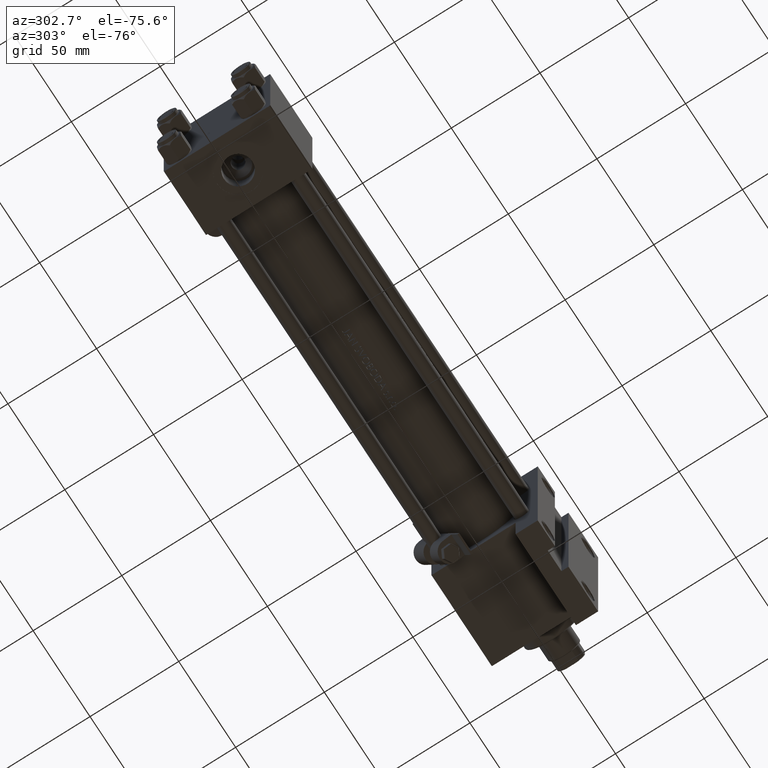
[diagram: clean part render]
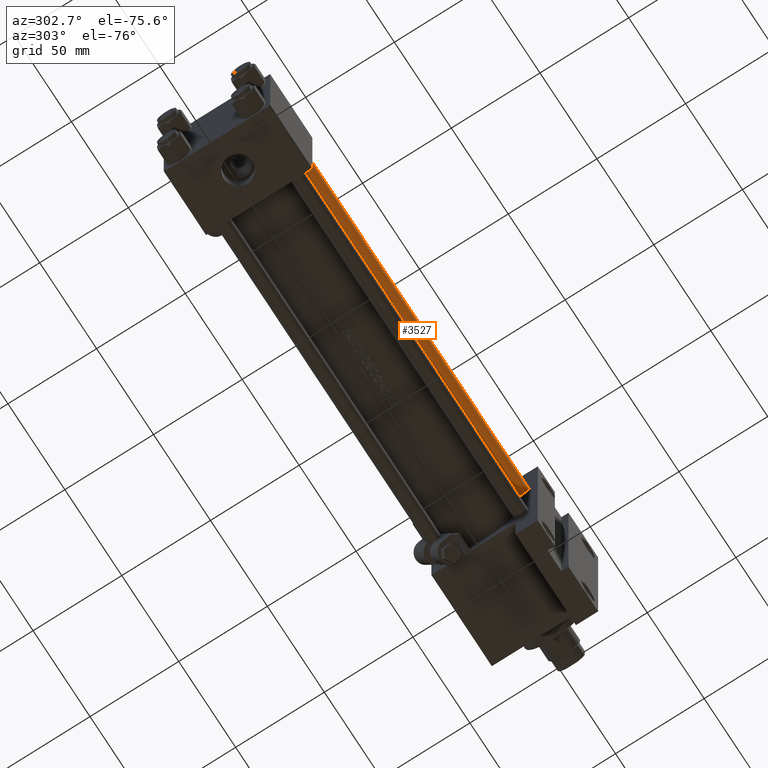
[diagram: same view with one face highlighted and labeled with its STEP entity id]
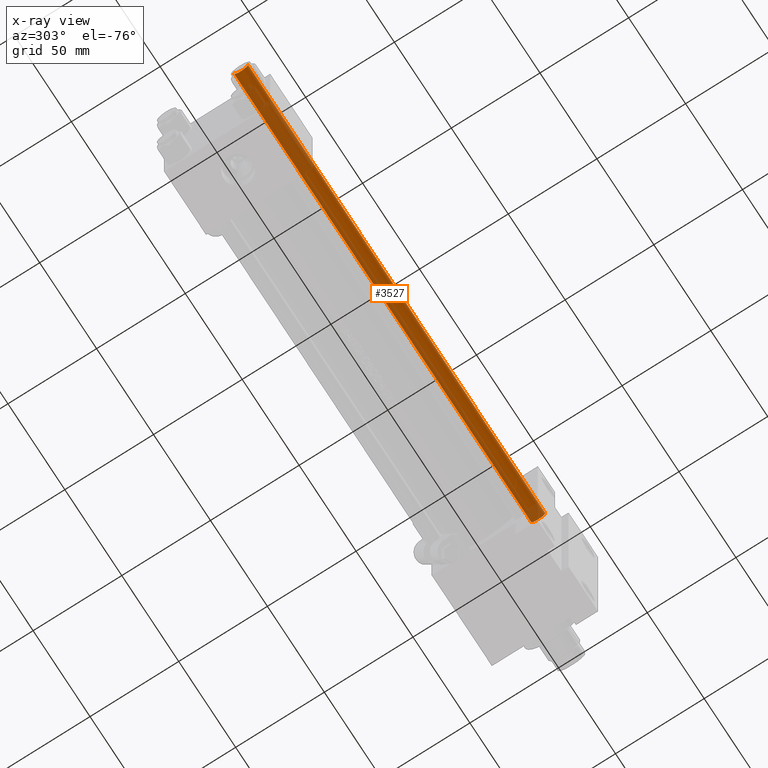
[diagram: x-ray of the same camera — body ghosted, the highlighted face saturated]
A machine part, auxiliary view. The second image highlights one B-rep face of the part: STEP entity #3527.
The next image is the same camera in x-ray: the body ghosted, the highlighted face saturated — about 41% of this face is hidden behind the body in this view.
In plain terms, the highlighted cylindrical surface (edge-blend (fillet) strip) has radius 4 mm, axis along (-1, 0, 0).
Its self-contained STEP definition (entity closure, byte-faithful):
#936 = VECTOR ( 'NONE', #16417, 1000.000000000000000 ) ;
#1458 = VERTEX_POINT ( 'NONE', #18186 ) ;
#2367 = VERTEX_POINT ( 'NONE', #22625 ) ;
#2515 = DIRECTION ( 'NONE',  ( -1.000000000000000000, 0.000000000000000000, 0.000000000000000000 ) ) ;
#3527 = ADVANCED_FACE ( 'NONE', ( #6441 ), #34971, .T. ) ;
#4128 = DIRECTION ( 'NONE',  ( -0.000000000000000000, -0.000000000000000000, 1.000000000000000000 ) ) ;
#4670 = EDGE_CURVE ( 'NONE', #28325, #1458, #34199, .T. ) ;
#6114 = EDGE_CURVE ( 'NONE', #2367, #1458, #47521, .T. ) ;
#6441 = FACE_OUTER_BOUND ( 'NONE', #12137, .T. ) ;
#7972 = ORIENTED_EDGE ( 'NONE', *, *, #50745, .T. ) ;
#8755 = CIRCLE ( 'NONE', #38886, 4.000000000000000000 ) ;
#8821 = DIRECTION ( 'NONE',  ( 1.000000000000000000, 0.000000000000000000, 0.000000000000000000 ) ) ;
#8987 = ORIENTED_EDGE ( 'NONE', *, *, #6114, .T. ) ;
#11170 = CARTESIAN_POINT ( 'NONE',  ( -4.000000000000000000, 0.000000000000000000, 262.0000000000000000 ) ) ;
#11698 = ORIENTED_EDGE ( 'NONE', *, *, #4670, .F. ) ;
#11976 = CARTESIAN_POINT ( 'NONE',  ( 4.000000000000000000, 4.898587196589412829E-16, 262.0000000000000000 ) ) ;
#12137 = EDGE_LOOP ( 'NONE', ( #34759, #7972, #8987, #11698 ) ) ;
#16417 = DIRECTION ( 'NONE',  ( -0.000000000000000000, -0.000000000000000000, -1.000000000000000000 ) ) ;
#18186 = CARTESIAN_POINT ( 'NONE',  ( -4.000000000000000000, 0.000000000000000000, 0.5000000000000559552 ) ) ;
#19005 = CARTESIAN_POINT ( 'NONE',  ( 0.000000000000000000, 0.000000000000000000, 262.0000000000000000 ) ) ;
#19977 = CARTESIAN_POINT ( 'NONE',  ( 4.000000000000000000, 4.898587196589412829E-16, 261.5000000000000000 ) ) ;
#21316 = CARTESIAN_POINT ( 'NONE',  ( 0.000000000000000000, 0.000000000000000000, 261.5000000000000000 ) ) ;
#22429 = AXIS2_PLACEMENT_3D ( 'NONE', #28203, #4128, #8821 ) ;
#22625 = CARTESIAN_POINT ( 'NONE',  ( 4.000000000000000000, 4.898587196589412829E-16, 0.5000000000000559552 ) ) ;
#23178 = AXIS2_PLACEMENT_3D ( 'NONE', #19005, #50965, #2515 ) ;
#25250 = DIRECTION ( 'NONE',  ( 0.000000000000000000, 0.000000000000000000, -1.000000000000000000 ) ) ;
#28203 = CARTESIAN_POINT ( 'NONE',  ( 0.000000000000000000, 0.000000000000000000, 0.5000000000000559552 ) ) ;
#28325 = VERTEX_POINT ( 'NONE', #39821 ) ;
#34199 = LINE ( 'NONE', #11170, #41634 ) ;
#34476 = EDGE_CURVE ( 'NONE', #28325, #35613, #8755, .T. ) ;
#34759 = ORIENTED_EDGE ( 'NONE', *, *, #34476, .T. ) ;
#34971 = CYLINDRICAL_SURFACE ( 'NONE', #23178, 4.000000000000000000 ) ;
#35613 = VERTEX_POINT ( 'NONE', #19977 ) ;
#38886 = AXIS2_PLACEMENT_3D ( 'NONE', #21316, #25250, #40943 ) ;
#39821 = CARTESIAN_POINT ( 'NONE',  ( -4.000000000000000000, 0.000000000000000000, 261.5000000000000000 ) ) ;
#40230 = LINE ( 'NONE', #11976, #936 ) ;
#40943 = DIRECTION ( 'NONE',  ( 1.000000000000000000, 0.000000000000000000, 0.000000000000000000 ) ) ;
#41634 = VECTOR ( 'NONE', #43108, 1000.000000000000000 ) ;
#43108 = DIRECTION ( 'NONE',  ( -0.000000000000000000, -0.000000000000000000, -1.000000000000000000 ) ) ;
#47521 = CIRCLE ( 'NONE', #22429, 4.000000000000000000 ) ;
#50745 = EDGE_CURVE ( 'NONE', #35613, #2367, #40230, .T. ) ;
#50965 = DIRECTION ( 'NONE',  ( -0.000000000000000000, -0.000000000000000000, -1.000000000000000000 ) ) ;